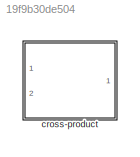
MODEL slx_19f9b30de504
KIND library
CONFIG AbsTol = auto
CONFIG FixedStep = auto
CONFIG MaxStep = auto
CONFIG MinStep = auto
CONFIG RelTol = 1e-3
CONFIG SampleTimeConstraint = Unconstrained
CONFIG Solver = VariableStepAuto
CONFIG SolverMode = Auto
CONFIG SolverName = VariableStepAuto
CONFIG StartTime = 0.0
CONFIG StopTime = 10.0
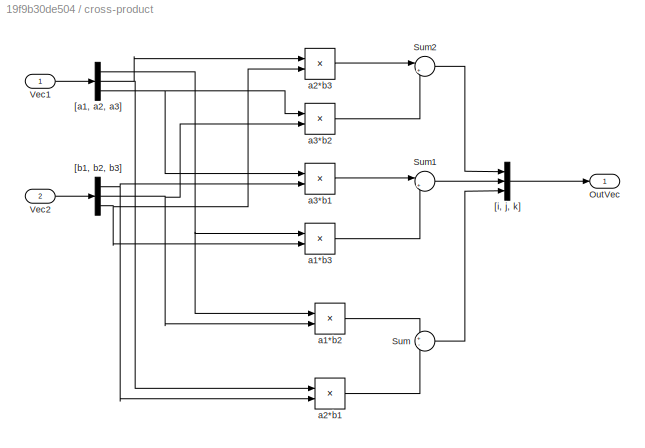
BLOCK [SubSystem] cross-product
  Ports = [2, 1]
  RequestExecContextInheritance = off
BLOCK [Outport] cross-product/OutVec
  IconDisplay = Port number
BLOCK [Sum] cross-product/Sum
  IconShape = round
  InputSameDT = off
  Inputs = +-
  OutDataTypeStr = Inherit: Inherit via internal rule
  Ports = [2, 1]
  SaturateOnIntegerOverflow = off
BLOCK [Sum] cross-product/Sum1
  IconShape = round
  InputSameDT = off
  Inputs = |+-
  OutDataTypeStr = Inherit: Inherit via internal rule
  Ports = [2, 1]
  SaturateOnIntegerOverflow = off
BLOCK [Sum] cross-product/Sum2
  IconShape = round
  InputSameDT = off
  Inputs = |+-
  OutDataTypeStr = Inherit: Inherit via internal rule
  Ports = [2, 1]
  SaturateOnIntegerOverflow = off
BLOCK [Inport] cross-product/Vec1
  IconDisplay = Port number
BLOCK [Inport] cross-product/Vec2
  IconDisplay = Port number
  Port = 2
BLOCK [Demux] cross-product/[a1, a2, a3]
  DisplayOption = bar
  Outputs = 3
  Ports = [1, 3]
BLOCK [Demux] cross-product/[b1, b2, b3]
  DisplayOption = bar
  Outputs = 3
  Ports = [1, 3]
BLOCK [Mux] cross-product/[i, j, k]
  DisplayOption = bar
  Inputs = 3
  Ports = [3, 1]
BLOCK [Product] cross-product/a1*b2
  InputSameDT = off
  OutDataTypeStr = Inherit: Inherit via internal rule
  Ports = [2, 1]
  RndMeth = Floor
  SaturateOnIntegerOverflow = off
BLOCK [Product] cross-product/a1*b3
  InputSameDT = off
  OutDataTypeStr = Inherit: Inherit via internal rule
  Ports = [2, 1]
  RndMeth = Floor
  SaturateOnIntegerOverflow = off
BLOCK [Product] cross-product/a2*b1
  InputSameDT = off
  OutDataTypeStr = Inherit: Inherit via internal rule
  Ports = [2, 1]
  RndMeth = Floor
  SaturateOnIntegerOverflow = off
BLOCK [Product] cross-product/a2*b3
  InputSameDT = off
  OutDataTypeStr = Inherit: Inherit via internal rule
  Ports = [2, 1]
  RndMeth = Floor
  SaturateOnIntegerOverflow = off
BLOCK [Product] cross-product/a3*b1
  InputSameDT = off
  OutDataTypeStr = Inherit: Inherit via internal rule
  Ports = [2, 1]
  RndMeth = Floor
  SaturateOnIntegerOverflow = off
BLOCK [Product] cross-product/a3*b2
  InputSameDT = off
  OutDataTypeStr = Inherit: Inherit via internal rule
  Ports = [2, 1]
  RndMeth = Floor
  SaturateOnIntegerOverflow = off
LINE cross-product/Sum1:1 -> cross-product/[i, j, k]:2
LINE cross-product/Sum2:1 -> cross-product/[i, j, k]:1
LINE cross-product/Sum:1 -> cross-product/[i, j, k]:3
LINE cross-product/Vec1:1 -> cross-product/[a1, a2, a3]:1
LINE cross-product/Vec2:1 -> cross-product/[b1, b2, b3]:1
NET cross-product/[a1, a2, a3]:1 -> cross-product/a1*b2:1, cross-product/a1*b3:1
NET cross-product/[a1, a2, a3]:2 -> cross-product/a2*b1:1, cross-product/a2*b3:1
NET cross-product/[a1, a2, a3]:3 -> cross-product/a3*b1:1, cross-product/a3*b2:1
NET cross-product/[b1, b2, b3]:1 -> cross-product/a2*b1:2, cross-product/a3*b1:2
NET cross-product/[b1, b2, b3]:2 -> cross-product/a1*b2:2, cross-product/a3*b2:2
NET cross-product/[b1, b2, b3]:3 -> cross-product/a1*b3:2, cross-product/a2*b3:2
LINE cross-product/[i, j, k]:1 -> cross-product/OutVec:1
LINE cross-product/a1*b2:1 -> cross-product/Sum:1
LINE cross-product/a1*b3:1 -> cross-product/Sum1:2
LINE cross-product/a2*b1:1 -> cross-product/Sum:2
LINE cross-product/a2*b3:1 -> cross-product/Sum2:1
LINE cross-product/a3*b1:1 -> cross-product/Sum1:1
LINE cross-product/a3*b2:1 -> cross-product/Sum2:2
note: NET lines group one-source signal fan-out (src -> all destinations, sorted); 1:1 wires keep LINE
